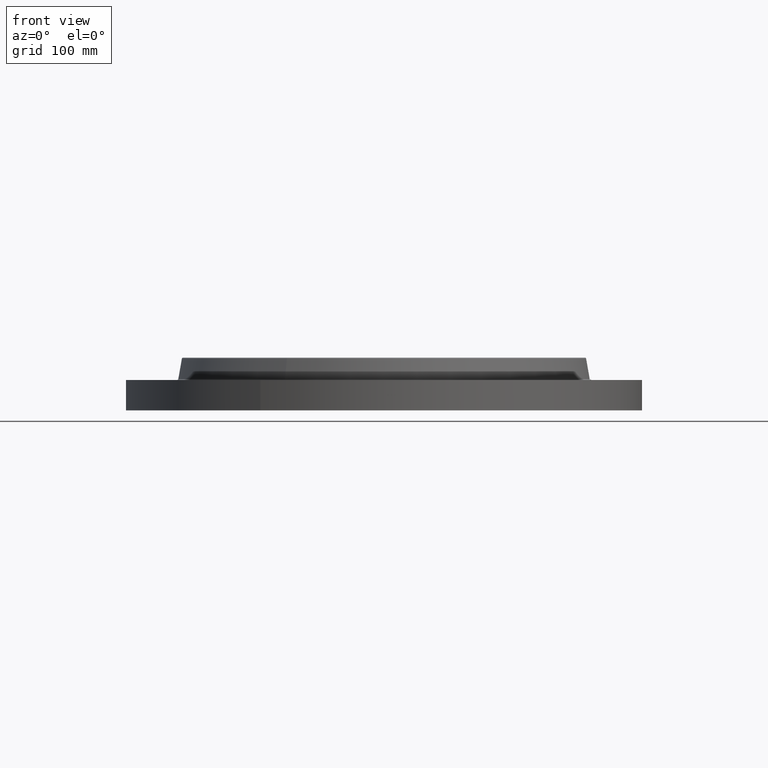
[diagram: clean part render]
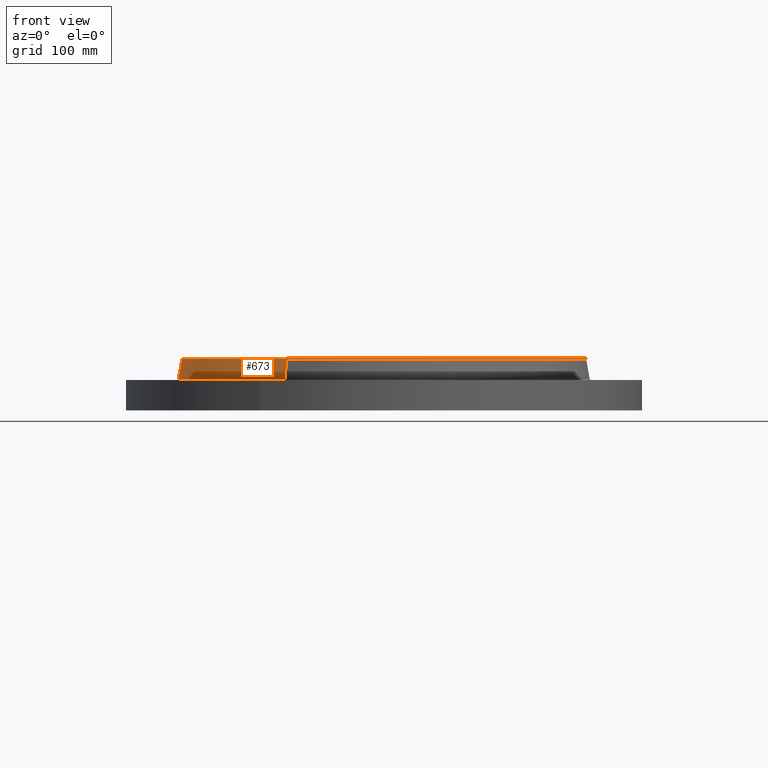
[diagram: same view with one face highlighted and labeled with its STEP entity id]
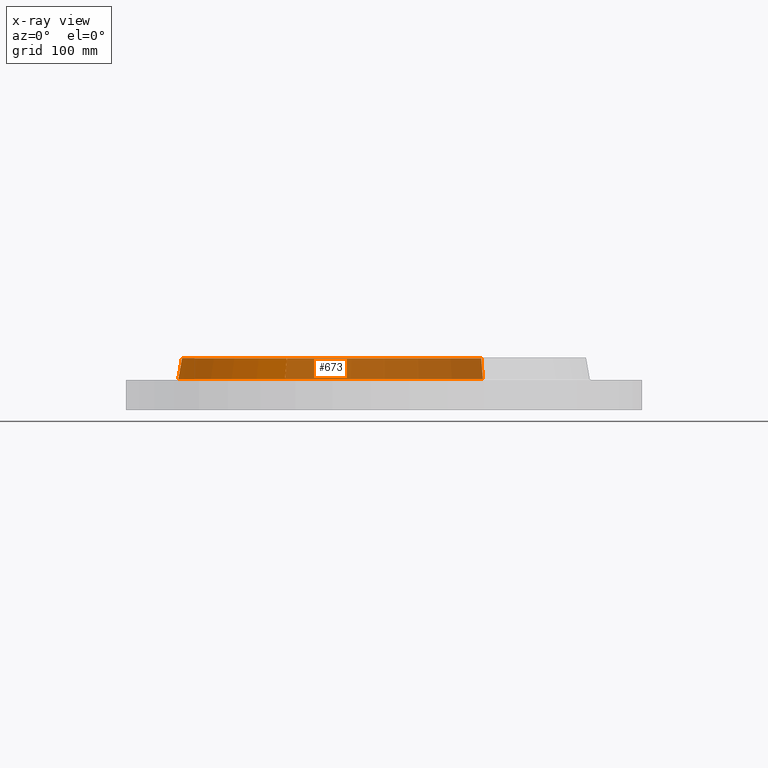
[diagram: x-ray of the same camera — body ghosted, the highlighted face saturated]
A machine part, front view. The second image highlights one B-rep face of the part: STEP entity #673.
The next image is the same camera in x-ray: the body ghosted, the highlighted face saturated — about 65% of this face is hidden behind the body in this view.
In plain terms, the highlighted conical surface has half-angle 10 deg.
Its self-contained STEP definition (entity closure, byte-faithful):
#621=AXIS2_PLACEMENT_3D('Circle Axis2P3D',#619,#620,$) ;
#634=AXIS2_PLACEMENT_3D('Cone Axis2P3D',#631,#632,#633) ;
#664=AXIS2_PLACEMENT_3D('Circle Axis2P3D',#662,#663,$) ;
#592=CARTESIAN_POINT('Vertex',(5.26948955298,9.64573592642,1.66958110935)) ;
#599=CARTESIAN_POINT('Vertex',(-5.26948955298,-9.64573592642,1.66958110935)) ;
#619=CARTESIAN_POINT('Axis2P3D Location',(0.,0.,1.66958110935)) ;
#631=CARTESIAN_POINT('Axis2P3D Location',(0.,0.,2.76041889067)) ;
#636=CARTESIAN_POINT('Line Origine',(5.22338220834,9.56133699817,2.21500000001)) ;
#640=CARTESIAN_POINT('Vertex',(5.1772748637,9.47693806992,2.76041889067)) ;
#647=CARTESIAN_POINT('Vertex',(-5.1772748637,-9.47693806992,2.76041889067)) ;
#650=CARTESIAN_POINT('Line Origine',(-5.22338220834,-9.56133699817,2.21500000001)) ;
#662=CARTESIAN_POINT('Axis2P3D Location',(0.,0.,2.76041889067)) ;
#620=DIRECTION('Axis2P3D Direction',(0.,0.,-0.0393700787402)) ;
#632=DIRECTION('Axis2P3D Direction',(0.,0.,-0.0393700787402)) ;
#633=DIRECTION('Axis2P3D XDirection',(-0.0188750212049,-0.0345504945626,0.)) ;
#637=DIRECTION('Vector Direction',(0.00327761303565,0.00599963041829,-0.03877195878)) ;
#651=DIRECTION('Vector Direction',(-0.00327761303565,-0.00599963041829,-0.03877195878)) ;
#663=DIRECTION('Axis2P3D Direction',(0.,0.,-0.0393700787402)) ;
#638=VECTOR('Line Direction',#637,0.0393700787402) ;
#652=VECTOR('Line Direction',#651,0.0393700787402) ;
#668=ORIENTED_EDGE('',*,*,#623,.F.) ;
#669=ORIENTED_EDGE('',*,*,#654,.T.) ;
#670=ORIENTED_EDGE('',*,*,#666,.T.) ;
#671=ORIENTED_EDGE('',*,*,#642,.F.) ;
#673=ADVANCED_FACE('PartBody',(#672),#635,.T.) ;
#622=CIRCLE('generated circle',#621,10.9912575127) ;
#665=CIRCLE('generated circle',#664,10.7989133803) ;
#635=CONICAL_SURFACE('Cone',#634,10.7989133803,0.174532925199) ;
#623=EDGE_CURVE('',#600,#593,#622,.T.) ;
#642=EDGE_CURVE('',#593,#641,#639,.F.) ;
#654=EDGE_CURVE('',#600,#648,#653,.F.) ;
#666=EDGE_CURVE('',#648,#641,#665,.T.) ;
#667=EDGE_LOOP('',(#668,#669,#670,#671)) ;
#672=FACE_OUTER_BOUND('',#667,.T.) ;
#639=LINE('Line',#636,#638) ;
#653=LINE('Line',#650,#652) ;
#593=VERTEX_POINT('',#592) ;
#600=VERTEX_POINT('',#599) ;
#641=VERTEX_POINT('',#640) ;
#648=VERTEX_POINT('',#647) ;